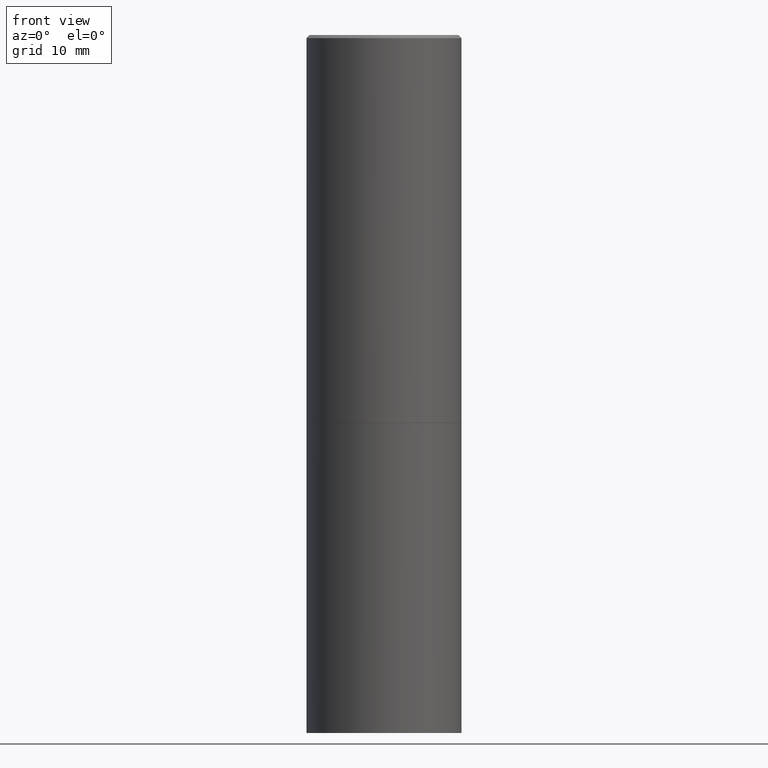
[diagram: clean part render]
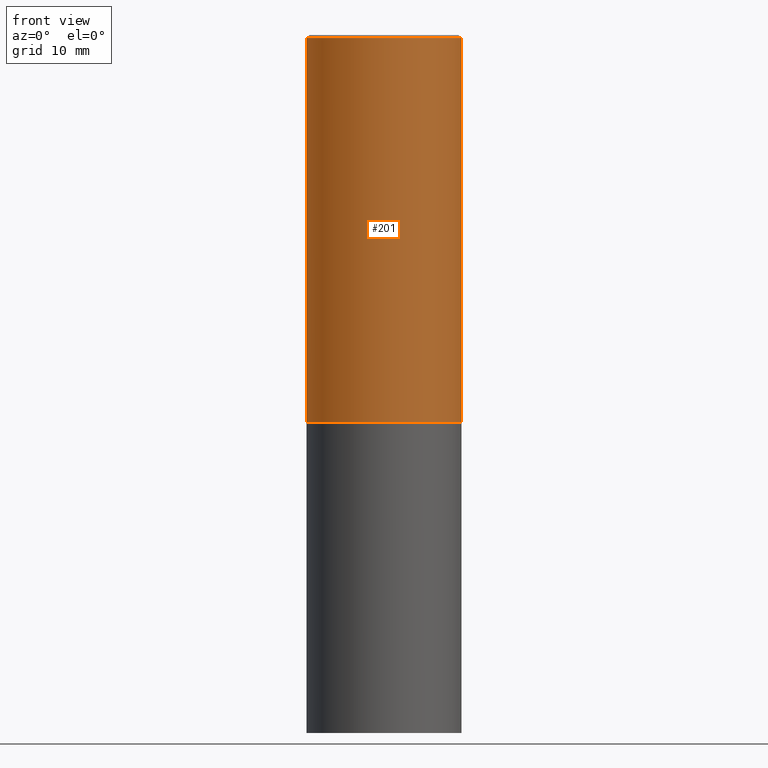
[diagram: same view with one face highlighted and labeled with its STEP entity id]
A machine part, front view. The second image highlights one B-rep face of the part: STEP entity #201.
In plain terms, the highlighted cylindrical surface (partial cylindrical patch) has radius 12.7 mm, axis along (-0, 0, 1).
Its self-contained STEP definition (entity closure, byte-faithful):
#3 = EDGE_CURVE ( 'NONE', #314, #7, #320, .T. ) ;
#7 = VERTEX_POINT ( 'NONE', #241 ) ;
#10 = VERTEX_POINT ( 'NONE', #272 ) ;
#30 = VECTOR ( 'NONE', #324, 39.37007874015748143 ) ;
#53 = AXIS2_PLACEMENT_3D ( 'NONE', #58, #259, #313 ) ;
#56 = DIRECTION ( 'NONE',  ( -2.445468806185136597E-29, 3.491481338843145583E-15, 1.000000000000000000 ) ) ;
#58 = CARTESIAN_POINT ( 'NONE',  ( 6.111226546656657010E-29, -8.725211865769021935E-15, -2.499000000000000110 ) ) ;
#73 = CARTESIAN_POINT ( 'NONE',  ( 0.5000000000000000000, -1.221669320461215371E-14, -2.499000000000000110 ) ) ;
#74 = DIRECTION ( 'NONE',  ( -2.445468806185136597E-29, 3.491481338843145583E-15, 1.000000000000000000 ) ) ;
#81 = CARTESIAN_POINT ( 'NONE',  ( 0.4999999999999997780, -3.491481338843131778E-15, 2.438088387897966775E-29 ) ) ;
#92 = VECTOR ( 'NONE', #127, 39.37007874015748143 ) ;
#112 = CIRCLE ( 'NONE', #53, 0.5000000000000000000 ) ;
#121 = ORIENTED_EDGE ( 'NONE', *, *, #223, .T. ) ;
#125 = EDGE_LOOP ( 'NONE', ( #343, #126, #121, #262 ) ) ;
#126 = ORIENTED_EDGE ( 'NONE', *, *, #260, .T. ) ;
#127 = DIRECTION ( 'NONE',  ( -2.445468806185136877E-29, 3.491481338843145188E-15, 1.000000000000000000 ) ) ;
#164 = FACE_OUTER_BOUND ( 'NONE', #125, .T. ) ;
#176 = VERTEX_POINT ( 'NONE', #73 ) ;
#201 = ADVANCED_FACE ( 'NONE', ( #164 ), #326, .T. ) ;
#207 = AXIS2_PLACEMENT_3D ( 'NONE', #337, #56, #284 ) ;
#209 = CARTESIAN_POINT ( 'NONE',  ( -0.4999999999999997780, 3.552713678800499352E-15, -2.459467545127452050E-29 ) ) ;
#213 = AXIS2_PLACEMENT_3D ( 'NONE', #282, #74, #357 ) ;
#223 = EDGE_CURVE ( 'NONE', #176, #10, #330, .T. ) ;
#233 = CIRCLE ( 'NONE', #207, 0.4999999999999996114 ) ;
#241 = CARTESIAN_POINT ( 'NONE',  ( -0.4999999999999996114, 3.421651712066267296E-15, -0.02000000000000010797 ) ) ;
#259 = DIRECTION ( 'NONE',  ( -2.445468806185136597E-29, 3.491481338843145583E-15, 1.000000000000000000 ) ) ;
#260 = EDGE_CURVE ( 'NONE', #314, #176, #112, .T. ) ;
#262 = ORIENTED_EDGE ( 'NONE', *, *, #347, .F. ) ;
#272 = CARTESIAN_POINT ( 'NONE',  ( 0.4999999999999996114, -3.500078625662626318E-15, -0.02000000000000010797 ) ) ;
#282 = CARTESIAN_POINT ( 'NONE',  ( 0.000000000000000000, 0.000000000000000000, 0.000000000000000000 ) ) ;
#284 = DIRECTION ( 'NONE',  ( 1.000000000000000000, -6.982962677686266711E-15, 0.000000000000000000 ) ) ;
#313 = DIRECTION ( 'NONE',  ( 1.000000000000000000, -6.982962677686265133E-15, 0.000000000000000000 ) ) ;
#314 = VERTEX_POINT ( 'NONE', #335 ) ;
#320 = LINE ( 'NONE', #209, #30 ) ;
#324 = DIRECTION ( 'NONE',  ( -2.445468806185136877E-29, 3.491481338843145188E-15, 1.000000000000000000 ) ) ;
#326 = CYLINDRICAL_SURFACE ( 'NONE', #213, 0.4999999999999997780 ) ;
#330 = LINE ( 'NONE', #81, #92 ) ;
#335 = CARTESIAN_POINT ( 'NONE',  ( -0.5000000000000000000, -8.448070674724393209E-16, -2.499000000000000110 ) ) ;
#337 = CARTESIAN_POINT ( 'NONE',  ( 4.890937612370299433E-31, -6.982962677686328587E-17, -0.02000000000000010797 ) ) ;
#343 = ORIENTED_EDGE ( 'NONE', *, *, #3, .F. ) ;
#347 = EDGE_CURVE ( 'NONE', #7, #10, #233, .T. ) ;
#357 = DIRECTION ( 'NONE',  ( 1.000000000000000000, -6.982962677686266711E-15, 4.876176775795935793E-29 ) ) ;